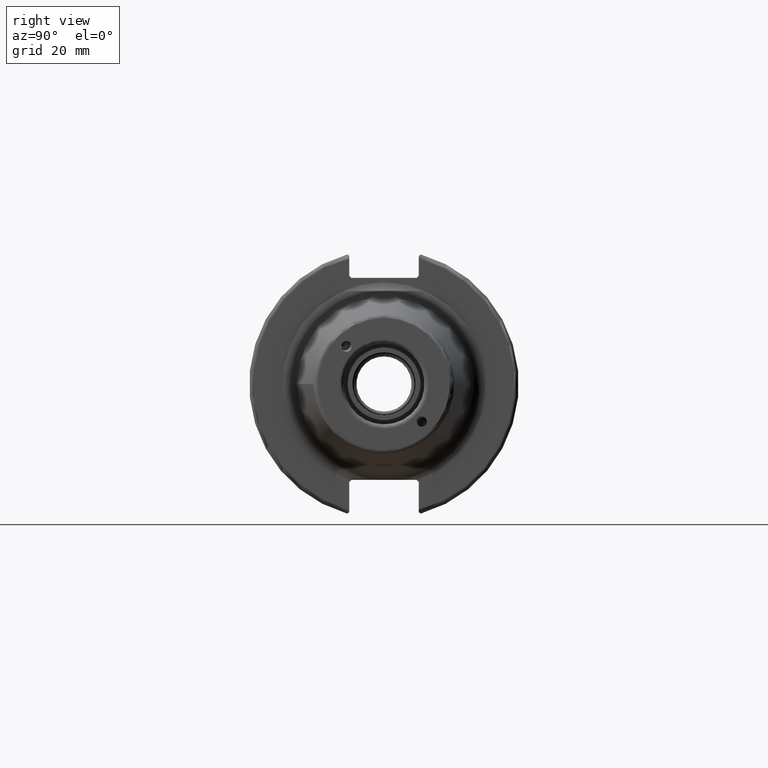
[diagram: clean part render]
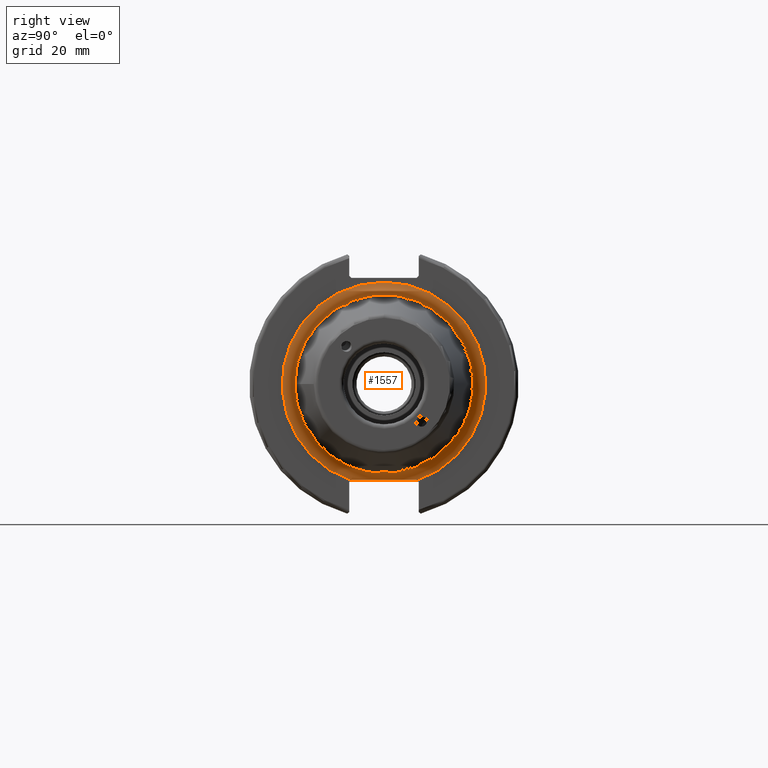
[diagram: same view with one face highlighted and labeled with its STEP entity id]
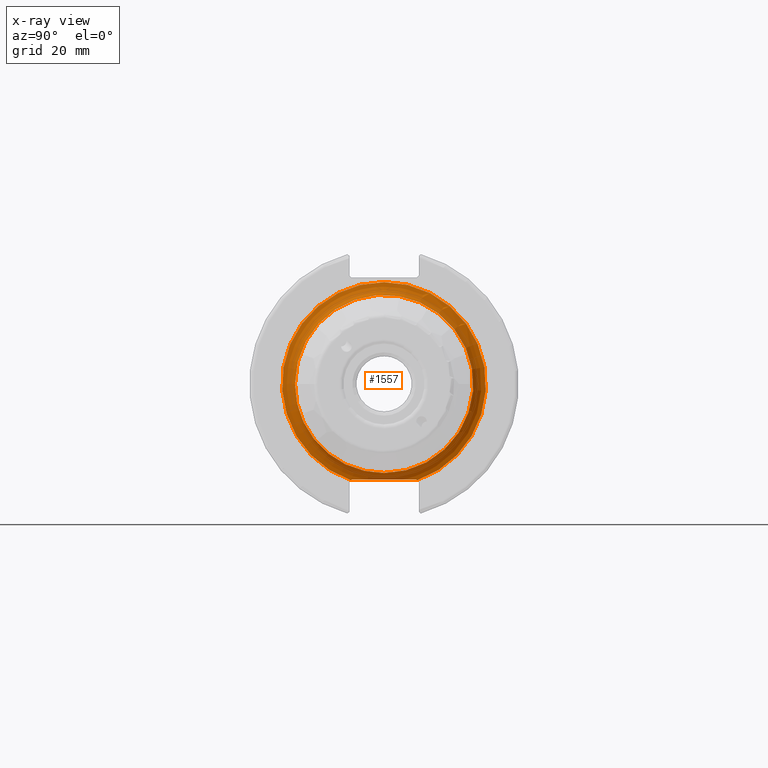
[diagram: x-ray of the same camera — body ghosted, the highlighted face saturated]
A machine part, right view. The second image highlights one B-rep face of the part: STEP entity #1557.
The next image is the same camera in x-ray: the body ghosted, the highlighted face saturated — about 0% of this face is hidden behind the body in this view.
In plain terms, the highlighted toroidal blend (fillet) surface has major radius 24 mm and minor (blend) radius 3 mm.
Its self-contained STEP definition (entity closure, byte-faithful):
#31=B_SPLINE_CURVE_WITH_KNOTS('',3,(#2371,#2372,#2373,#2374,#2375,#2376,
#2377,#2378),.UNSPECIFIED.,.F.,.F.,(4,2,2,4),(3.0216236412766,3.28363628936794,
3.54564893745927,3.74225815963158),.UNSPECIFIED.);
#32=B_SPLINE_CURVE_WITH_KNOTS('',3,(#2380,#2381,#2382,#2383),
 .UNSPECIFIED.,.F.,.F.,(4,4),(1.40009398294628,1.41404503547573),
 .UNSPECIFIED.);
#33=B_SPLINE_CURVE_WITH_KNOTS('',3,(#2387,#2388,#2389,#2390),
 .UNSPECIFIED.,.F.,.F.,(4,4),(0.466891581460793,0.480842633994298),
 .UNSPECIFIED.);
#34=B_SPLINE_CURVE_WITH_KNOTS('',3,(#2391,#2392,#2393,#2394,#2395,#2396,
#2397,#2398),.UNSPECIFIED.,.F.,.F.,(4,2,2,4),(2.30098912292435,2.49759834509393,
2.75961099318527,3.0216236412766),.UNSPECIFIED.);
#380=FACE_OUTER_BOUND('',#475,.T.);
#475=EDGE_LOOP('',(#1081,#1082,#1083,#1084,#1085,#1086,#1087,#1088,#1089));
#586=CIRCLE('',#1685,21.);
#587=CIRCLE('',#1686,3.);
#588=CIRCLE('',#1687,24.);
#589=CIRCLE('',#1688,21.);
#664=VERTEX_POINT('',#2365);
#665=VERTEX_POINT('',#2366);
#666=VERTEX_POINT('',#2368);
#667=VERTEX_POINT('',#2370);
#668=VERTEX_POINT('',#2379);
#669=VERTEX_POINT('',#2384);
#670=VERTEX_POINT('',#2386);
#828=EDGE_CURVE('',#664,#665,#586,.T.);
#829=EDGE_CURVE('',#665,#666,#587,.T.);
#830=EDGE_CURVE('',#667,#666,#31,.F.);
#831=EDGE_CURVE('',#668,#667,#32,.F.);
#832=EDGE_CURVE('',#668,#669,#588,.T.);
#833=EDGE_CURVE('',#670,#669,#33,.F.);
#834=EDGE_CURVE('',#666,#670,#34,.F.);
#835=EDGE_CURVE('',#665,#664,#589,.T.);
#1081=ORIENTED_EDGE('',*,*,#828,.T.);
#1082=ORIENTED_EDGE('',*,*,#829,.T.);
#1083=ORIENTED_EDGE('',*,*,#830,.F.);
#1084=ORIENTED_EDGE('',*,*,#831,.F.);
#1085=ORIENTED_EDGE('',*,*,#832,.T.);
#1086=ORIENTED_EDGE('',*,*,#833,.F.);
#1087=ORIENTED_EDGE('',*,*,#834,.F.);
#1088=ORIENTED_EDGE('',*,*,#829,.F.);
#1089=ORIENTED_EDGE('',*,*,#835,.T.);
#1545=TOROIDAL_SURFACE('',#1684,24.,3.);
#1557=ADVANCED_FACE('',(#380),#1545,.F.);
#1684=AXIS2_PLACEMENT_3D('',#2364,#1895,#1896);
#1685=AXIS2_PLACEMENT_3D('',#2367,#1897,#1898);
#1686=AXIS2_PLACEMENT_3D('',#2369,#1899,#1900);
#1687=AXIS2_PLACEMENT_3D('',#2385,#1901,#1902);
#1688=AXIS2_PLACEMENT_3D('',#2399,#1903,#1904);
#1895=DIRECTION('center_axis',(-1.,0.,0.));
#1896=DIRECTION('ref_axis',(0.,0.,1.));
#1897=DIRECTION('center_axis',(-1.,0.,0.));
#1898=DIRECTION('ref_axis',(0.,-1.,-1.22464679914735E-16));
#1899=DIRECTION('center_axis',(0.,-1.,1.22464679914735E-16));
#1900=DIRECTION('ref_axis',(0.,-1.22464679914735E-16,-1.));
#1901=DIRECTION('center_axis',(1.,0.,0.));
#1902=DIRECTION('ref_axis',(0.,-1.,-1.22464679914735E-16));
#1903=DIRECTION('center_axis',(-1.,0.,0.));
#1904=DIRECTION('ref_axis',(0.,-1.,-1.22464679914735E-16));
#2364=CARTESIAN_POINT('Origin',(22.05,0.,0.));
#2365=CARTESIAN_POINT('',(22.05,-21.,-2.57175827820944E-15));
#2366=CARTESIAN_POINT('',(22.05,-2.57175827820944E-15,-21.));
#2367=CARTESIAN_POINT('Origin',(22.05,0.,0.));
#2368=CARTESIAN_POINT('',(19.3967001677157,-1.38385088303651E-15,-22.6));
#2369=CARTESIAN_POINT('Origin',(22.05,-2.93915231795365E-15,-24.));
#2370=CARTESIAN_POINT('',(19.0527107387712,7.68999999999903,-22.5999999999997));
#2371=CARTESIAN_POINT('Ctrl Pts',(19.3967001677157,0.,-22.6));
#2372=CARTESIAN_POINT('Ctrl Pts',(19.3967001677157,0.873375493637784,-22.6));
#2373=CARTESIAN_POINT('Ctrl Pts',(19.36568730967,1.83307700034502,-22.6));
#2374=CARTESIAN_POINT('Ctrl Pts',(19.260184656287,3.75074838316052,-22.6));
#2375=CARTESIAN_POINT('Ctrl Pts',(19.1897248959444,4.70893785217619,-22.6));
#2376=CARTESIAN_POINT('Ctrl Pts',(19.0991248022468,6.23499037040782,-22.6));
#2377=CARTESIAN_POINT('Ctrl Pts',(19.0621726707475,6.99950800192411,-22.6));
#2378=CARTESIAN_POINT('Ctrl Pts',(19.0527107387712,7.68999999999903,-22.6));
#2379=CARTESIAN_POINT('',(19.05,7.79042472350311,-22.7004247235031));
#2380=CARTESIAN_POINT('Ctrl Pts',(19.0527107387708,7.69000000000736,-22.6000000000074));
#2381=CARTESIAN_POINT('Ctrl Pts',(19.0508750457563,7.72400994662633,-22.6340099466263));
#2382=CARTESIAN_POINT('Ctrl Pts',(19.05,7.75754177734223,-22.6675417773422));
#2383=CARTESIAN_POINT('Ctrl Pts',(19.05,7.79042472350312,-22.7004247235031));
#2384=CARTESIAN_POINT('',(19.05,-7.79042472350311,-22.7004247235031));
#2385=CARTESIAN_POINT('Origin',(19.05,0.,0.));
#2386=CARTESIAN_POINT('',(19.0527107387728,-7.68999999997033,-22.5999999999852));
#2387=CARTESIAN_POINT('Ctrl Pts',(19.05,-7.79042472350312,-22.7004247235031));
#2388=CARTESIAN_POINT('Ctrl Pts',(19.05,-7.75754177733268,-22.6675417773327));
#2389=CARTESIAN_POINT('Ctrl Pts',(19.0508750457568,-7.72400994660686,-22.6340099466069));
#2390=CARTESIAN_POINT('Ctrl Pts',(19.0527107387724,-7.68999999997773,-22.5999999999777));
#2391=CARTESIAN_POINT('Ctrl Pts',(19.0527107387716,-7.68999999997031,-22.6));
#2392=CARTESIAN_POINT('Ctrl Pts',(19.0621726707484,-6.99950800190292,-22.6));
#2393=CARTESIAN_POINT('Ctrl Pts',(19.0991248022473,-6.23499037039875,-22.6));
#2394=CARTESIAN_POINT('Ctrl Pts',(19.1897248959444,-4.70893785217619,-22.6));
#2395=CARTESIAN_POINT('Ctrl Pts',(19.260184656287,-3.75074838316052,-22.6));
#2396=CARTESIAN_POINT('Ctrl Pts',(19.36568730967,-1.83307700034502,-22.6));
#2397=CARTESIAN_POINT('Ctrl Pts',(19.3967001677157,-0.873375493637784,-22.6));
#2398=CARTESIAN_POINT('Ctrl Pts',(19.3967001677157,0.,-22.6));
#2399=CARTESIAN_POINT('Origin',(22.05,0.,0.));